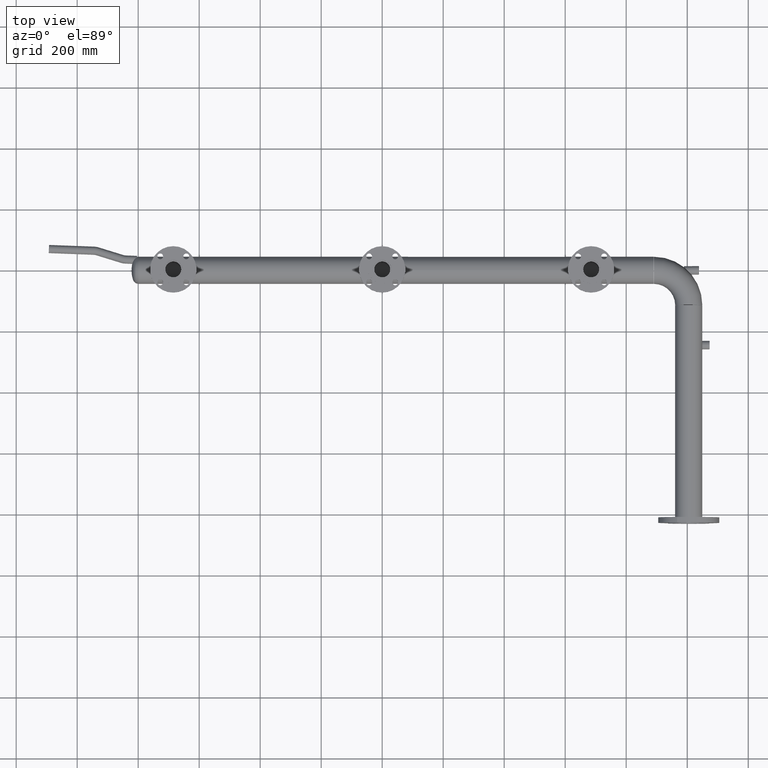
[diagram: clean part render]
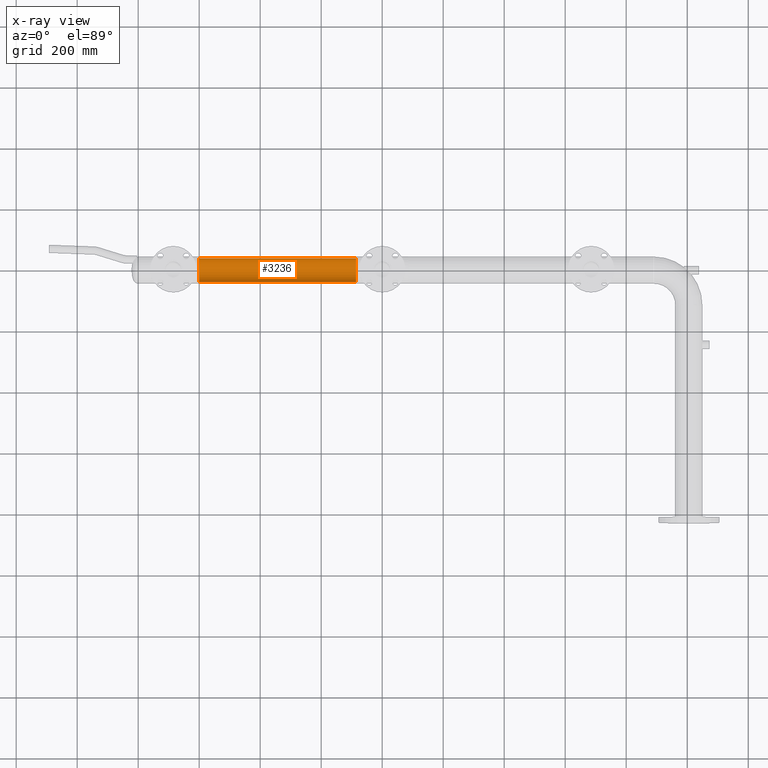
[diagram: x-ray — body ghosted, one internal face saturated and labeled with its STEP entity id]
A machine part, top view, then the same camera in x-ray: the body is ghosted and one INTERNAL B-rep face — a face not visible from any outside direction — is saturated and labeled: STEP entity #3236.
In plain terms, the highlighted cylindrical surface (edge-blend (fillet) strip) has radius 38.95 mm, axis along (1, 0, -0).
Its self-contained STEP definition (entity closure, byte-faithful):
#246 = DIRECTION ( 'NONE',  ( 1.000000000000000000, 1.361513478024022673E-17, -5.755200308641385394E-66 ) ) ;
#276 = LINE ( 'NONE', #2353, #3940 ) ;
#633 = VERTEX_POINT ( 'NONE', #4290 ) ;
#699 = DIRECTION ( 'NONE',  ( 1.000000000000000000, 1.361513478024022673E-17, -5.755200308641385394E-66 ) ) ;
#740 = ORIENTED_EDGE ( 'NONE', *, *, #4779, .F. ) ;
#917 = DIRECTION ( 'NONE',  ( 1.000000000000000000, 1.361513478024022673E-17, -5.755200308641385394E-66 ) ) ;
#1128 = CARTESIAN_POINT ( 'NONE',  ( -599.3000000000000682, -6.992733223131379957E-15, -2.091494006573643760E-63 ) ) ;
#1153 = EDGE_CURVE ( 'NONE', #4812, #3778, #1758, .T. ) ;
#1498 = ORIENTED_EDGE ( 'NONE', *, *, #1153, .F. ) ;
#1598 = ORIENTED_EDGE ( 'NONE', *, *, #3961, .T. ) ;
#1758 = LINE ( 'NONE', #5890, #2041 ) ;
#1808 = AXIS2_PLACEMENT_3D ( 'NONE', #5090, #5778, #5746 ) ;
#1986 = CARTESIAN_POINT ( 'NONE',  ( -599.3000000000000682, 38.95000000000000995, -3.569429445832751550E-63 ) ) ;
#2041 = VECTOR ( 'NONE', #699, 1000.000000000000000 ) ;
#2081 = CIRCLE ( 'NONE', #1808, 38.95000000000001705 ) ;
#2353 = CARTESIAN_POINT ( 'NONE',  ( -599.3000000000000682, -38.95000000000002416, 4.769999282678943171E-15 ) ) ;
#2523 = DIRECTION ( 'NONE',  ( 0.000000000000000000, 1.000000000000000000, 0.000000000000000000 ) ) ;
#2663 = EDGE_CURVE ( 'NONE', #4812, #633, #3374, .T. ) ;
#3060 = AXIS2_PLACEMENT_3D ( 'NONE', #5592, #917, #2523 ) ;
#3236 = ADVANCED_FACE ( 'NONE', ( #5522 ), #3510, .F. ) ;
#3374 = CIRCLE ( 'NONE', #3478, 38.95000000000001705 ) ;
#3478 = AXIS2_PLACEMENT_3D ( 'NONE', #1128, #5367, #5843 ) ;
#3510 = CYLINDRICAL_SURFACE ( 'NONE', #3060, 38.95000000000001705 ) ;
#3778 = VERTEX_POINT ( 'NONE', #4211 ) ;
#3940 = VECTOR ( 'NONE', #246, 1000.000000000000000 ) ;
#3961 = EDGE_CURVE ( 'NONE', #633, #5668, #276, .T. ) ;
#4211 = CARTESIAN_POINT ( 'NONE',  ( -85.70000000000000284, 38.95000000000001705, -3.569429445832751550E-63 ) ) ;
#4290 = CARTESIAN_POINT ( 'NONE',  ( -599.3000000000000682, -38.95000000000002416, 4.769999282678943171E-15 ) ) ;
#4550 = ORIENTED_EDGE ( 'NONE', *, *, #2663, .T. ) ;
#4779 = EDGE_CURVE ( 'NONE', #3778, #5668, #2081, .T. ) ;
#4780 = EDGE_LOOP ( 'NONE', ( #4550, #1598, #740, #1498 ) ) ;
#4812 = VERTEX_POINT ( 'NONE', #1986 ) ;
#5090 = CARTESIAN_POINT ( 'NONE',  ( -85.70000000000000284, -1.540743955509788682E-30, -5.047364885091860149E-63 ) ) ;
#5367 = DIRECTION ( 'NONE',  ( -1.000000000000000000, -1.361513478024022673E-17, 5.755200308641385394E-66 ) ) ;
#5379 = CARTESIAN_POINT ( 'NONE',  ( -85.70000000000000284, -38.95000000000001705, 4.769999282678943171E-15 ) ) ;
#5522 = FACE_OUTER_BOUND ( 'NONE', #4780, .T. ) ;
#5592 = CARTESIAN_POINT ( 'NONE',  ( -599.3000000000000682, -6.992733223131379957E-15, -2.091494006573643760E-63 ) ) ;
#5668 = VERTEX_POINT ( 'NONE', #5379 ) ;
#5746 = DIRECTION ( 'NONE',  ( 0.000000000000000000, -1.000000000000000000, 0.000000000000000000 ) ) ;
#5778 = DIRECTION ( 'NONE',  ( -1.000000000000000000, -1.361513478024022673E-17, 5.755200308641385394E-66 ) ) ;
#5843 = DIRECTION ( 'NONE',  ( 0.000000000000000000, -1.000000000000000000, 0.000000000000000000 ) ) ;
#5890 = CARTESIAN_POINT ( 'NONE',  ( -599.3000000000000682, 38.95000000000000995, -2.091494006573643760E-63 ) ) ;